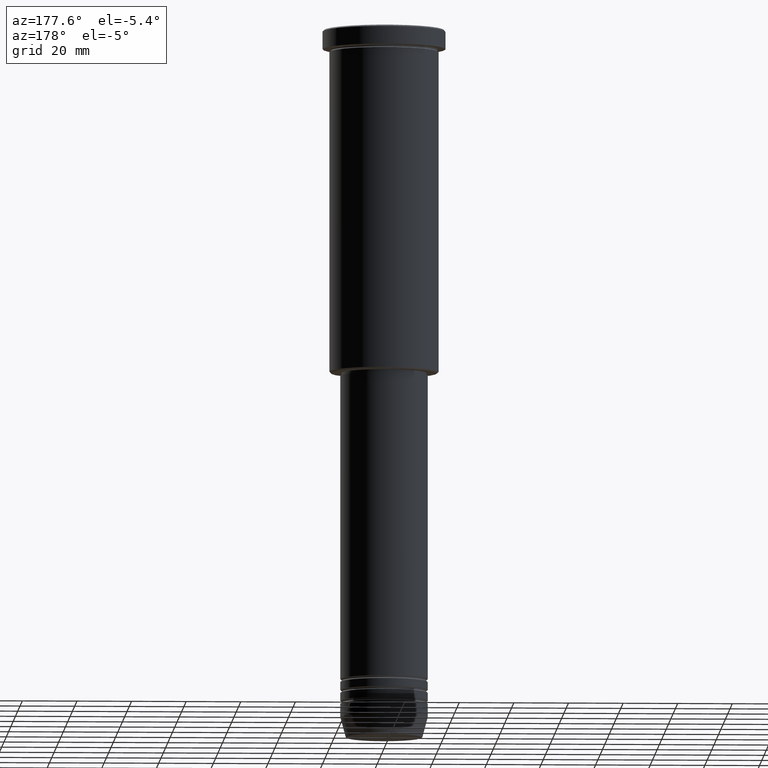
[diagram: clean part render]
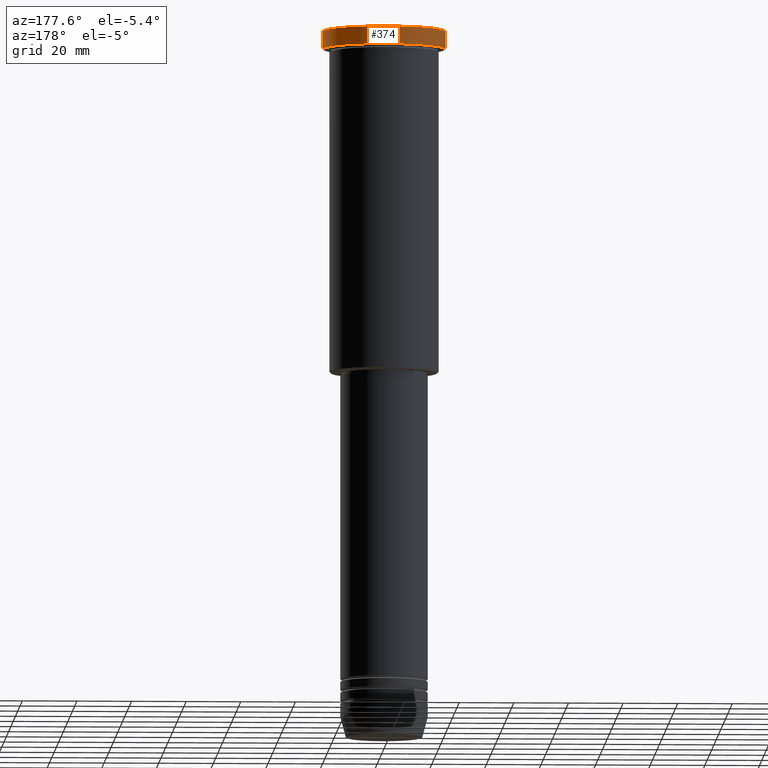
[diagram: same view with one face highlighted and labeled with its STEP entity id]
A machine part, auxiliary view. The second image highlights one B-rep face of the part: STEP entity #374.
In plain terms, the highlighted cylindrical surface (partial cylindrical patch) has radius 22.5 mm, axis along (-0, -0, 1).
Its self-contained STEP definition (entity closure, byte-faithful):
#31 = VECTOR ( 'NONE', #605, 1000.000000000000000 ) ;
#32 = CYLINDRICAL_SURFACE ( 'NONE', #1096, 22.50000000000000000 ) ;
#68 = VECTOR ( 'NONE', #452, 1000.000000000000000 ) ;
#79 = EDGE_CURVE ( 'NONE', #403, #309, #950, .T. ) ;
#98 = ORIENTED_EDGE ( 'NONE', *, *, #1100, .T. ) ;
#168 = ORIENTED_EDGE ( 'NONE', *, *, #844, .T. ) ;
#220 = EDGE_CURVE ( 'NONE', #263, #554, #1002, .T. ) ;
#263 = VERTEX_POINT ( 'NONE', #1099 ) ;
#289 = DIRECTION ( 'NONE',  ( -0.000000000000000000, -0.000000000000000000, 1.000000000000000000 ) ) ;
#302 = CARTESIAN_POINT ( 'NONE',  ( -22.50000000000000000, 2.755455298081544778E-15, -6.999999999999995559 ) ) ;
#309 = VERTEX_POINT ( 'NONE', #891 ) ;
#322 = DIRECTION ( 'NONE',  ( 1.000000000000000000, 0.000000000000000000, 0.000000000000000000 ) ) ;
#342 = EDGE_LOOP ( 'NONE', ( #98, #829, #168, #718 ) ) ;
#368 = AXIS2_PLACEMENT_3D ( 'NONE', #1172, #508, #520 ) ;
#374 = ADVANCED_FACE ( 'NONE', ( #1021 ), #32, .T. ) ;
#403 = VERTEX_POINT ( 'NONE', #302 ) ;
#413 = CARTESIAN_POINT ( 'NONE',  ( 0.000000000000000000, 0.000000000000000000, -0.5000000000001045830 ) ) ;
#452 = DIRECTION ( 'NONE',  ( -0.000000000000000000, -0.000000000000000000, 1.000000000000000000 ) ) ;
#508 = DIRECTION ( 'NONE',  ( -0.000000000000000000, -0.000000000000000000, 1.000000000000000000 ) ) ;
#520 = DIRECTION ( 'NONE',  ( 1.000000000000000000, 0.000000000000000000, 0.000000000000000000 ) ) ;
#548 = CARTESIAN_POINT ( 'NONE',  ( 22.50000000000000000, 0.000000000000000000, 0.000000000000000000 ) ) ;
#554 = VERTEX_POINT ( 'NONE', #803 ) ;
#605 = DIRECTION ( 'NONE',  ( -0.000000000000000000, -0.000000000000000000, 1.000000000000000000 ) ) ;
#687 = CARTESIAN_POINT ( 'NONE',  ( -22.50000000000000000, 2.755455298081544778E-15, 0.000000000000000000 ) ) ;
#718 = ORIENTED_EDGE ( 'NONE', *, *, #220, .F. ) ;
#803 = CARTESIAN_POINT ( 'NONE',  ( 22.50000000000000000, 0.000000000000000000, -0.5000000000001045830 ) ) ;
#829 = ORIENTED_EDGE ( 'NONE', *, *, #79, .T. ) ;
#833 = CARTESIAN_POINT ( 'NONE',  ( 0.000000000000000000, 0.000000000000000000, 0.000000000000000000 ) ) ;
#844 = EDGE_CURVE ( 'NONE', #309, #554, #1143, .T. ) ;
#891 = CARTESIAN_POINT ( 'NONE',  ( -22.50000000000000000, 2.755455298081544778E-15, -0.5000000000001045830 ) ) ;
#925 = DIRECTION ( 'NONE',  ( 1.000000000000000000, 0.000000000000000000, 0.000000000000000000 ) ) ;
#950 = LINE ( 'NONE', #687, #31 ) ;
#1002 = LINE ( 'NONE', #548, #68 ) ;
#1021 = FACE_OUTER_BOUND ( 'NONE', #342, .T. ) ;
#1052 = DIRECTION ( 'NONE',  ( 0.000000000000000000, 0.000000000000000000, -1.000000000000000000 ) ) ;
#1096 = AXIS2_PLACEMENT_3D ( 'NONE', #833, #289, #925 ) ;
#1098 = AXIS2_PLACEMENT_3D ( 'NONE', #413, #1052, #322 ) ;
#1099 = CARTESIAN_POINT ( 'NONE',  ( 22.50000000000000000, 0.000000000000000000, -6.999999999999995559 ) ) ;
#1100 = EDGE_CURVE ( 'NONE', #263, #403, #1137, .T. ) ;
#1137 = CIRCLE ( 'NONE', #368, 22.50000000000000000 ) ;
#1143 = CIRCLE ( 'NONE', #1098, 22.50000000000000000 ) ;
#1172 = CARTESIAN_POINT ( 'NONE',  ( 0.000000000000000000, 0.000000000000000000, -6.999999999999995559 ) ) ;